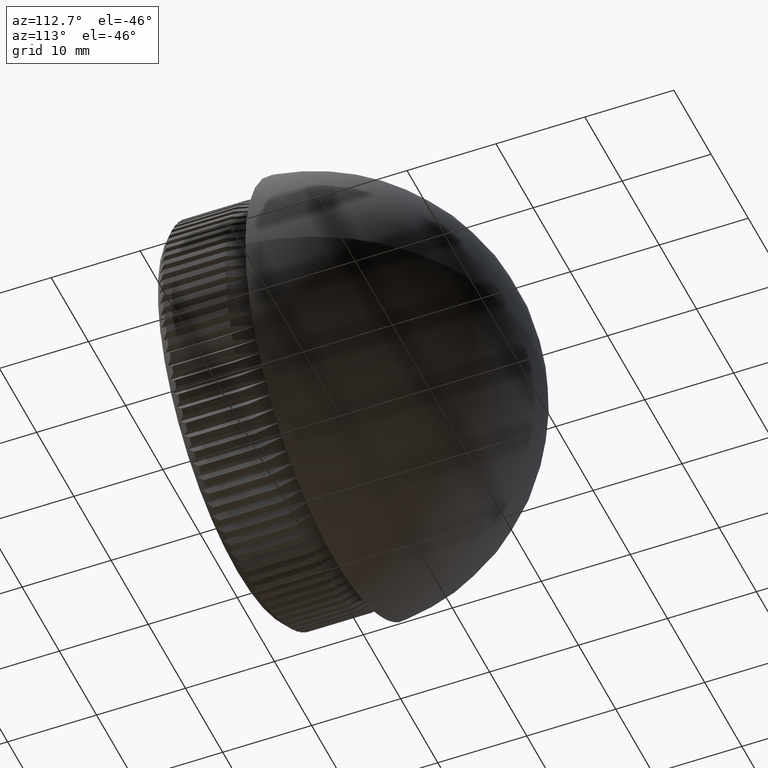
[diagram: clean part render]
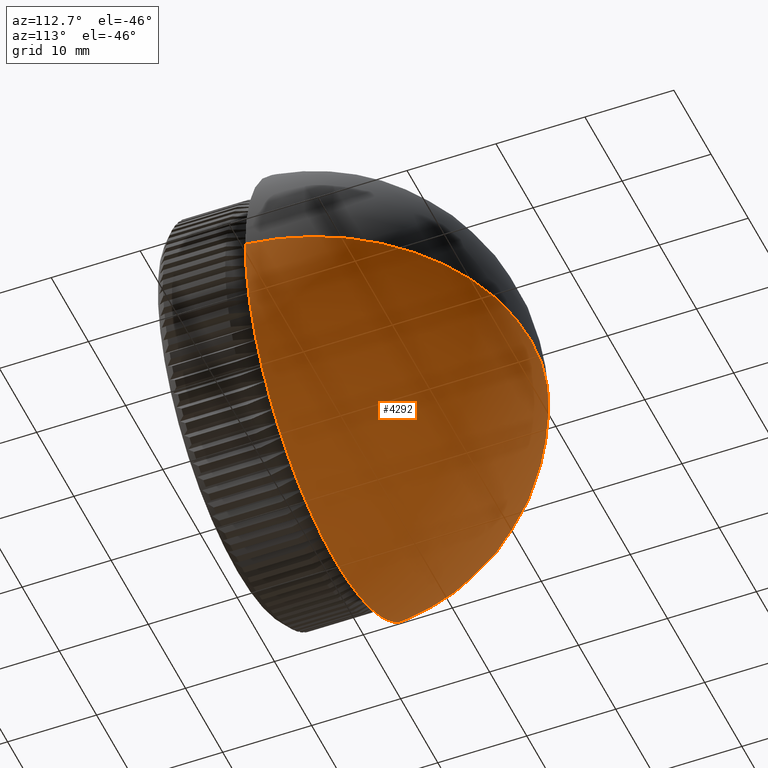
[diagram: same view with one face highlighted and labeled with its STEP entity id]
A machine part, auxiliary view. The second image highlights one B-rep face of the part: STEP entity #4292.
In plain terms, the highlighted spherical surface has radius 24.2551 mm.
Its self-contained STEP definition (entity closure, byte-faithful):
#2185 = CARTESIAN_POINT ( 'NONE',  ( 1.485193884776177600E-015, 33.00000000000000000, 0.0000000000000000000 ) ) ;
#2784 = CARTESIAN_POINT ( 'NONE',  ( -24.14999999999999900, 11.00000000000000400, 2.957522019940857900E-015 ) ) ;
#2894 = SPHERICAL_SURFACE ( 'NONE', #13294, 24.25505681818181700 ) ;
#3705 = DIRECTION ( 'NONE',  ( -1.000000000000000000, 0.0000000000000000000, 0.0000000000000000000 ) ) ;
#3887 = EDGE_CURVE ( 'NONE', #13904, #13243, #17136, .T. ) ;
#4292 = ADVANCED_FACE ( 'NONE', ( #5105 ), #2894, .T. ) ;
#4471 = AXIS2_PLACEMENT_3D ( 'NONE', #15670, #15828, #4982 ) ;
#4982 = DIRECTION ( 'NONE',  ( 1.000000000000000000, 0.0000000000000000000, -1.224646799147353500E-016 ) ) ;
#5056 = DIRECTION ( 'NONE',  ( -0.0000000000000000000, -1.000000000000000000, -0.0000000000000000000 ) ) ;
#5105 = FACE_OUTER_BOUND ( 'NONE', #18175, .T. ) ;
#5117 = ORIENTED_EDGE ( 'NONE', *, *, #10156, .F. ) ;
#5363 = DIRECTION ( 'NONE',  ( 0.0000000000000000000, 0.0000000000000000000, -1.000000000000000000 ) ) ;
#6533 = CARTESIAN_POINT ( 'NONE',  ( 0.0000000000000000000, 8.744943181818182900, 0.0000000000000000000 ) ) ;
#6911 = CIRCLE ( 'NONE', #16990, 24.14999999999999900 ) ;
#10156 = EDGE_CURVE ( 'NONE', #14509, #13243, #6911, .T. ) ;
#10751 = CIRCLE ( 'NONE', #4471, 24.25505681818181700 ) ;
#10797 = AXIS2_PLACEMENT_3D ( 'NONE', #11078, #12551, #3705 ) ;
#11078 = CARTESIAN_POINT ( 'NONE',  ( 0.0000000000000000000, 8.744943181818182900, 0.0000000000000000000 ) ) ;
#12087 = CARTESIAN_POINT ( 'NONE',  ( 24.14999999999999900, 11.00000000000000400, 0.0000000000000000000 ) ) ;
#12551 = DIRECTION ( 'NONE',  ( 0.0000000000000000000, 0.0000000000000000000, -1.000000000000000000 ) ) ;
#13243 = VERTEX_POINT ( 'NONE', #12087 ) ;
#13294 = AXIS2_PLACEMENT_3D ( 'NONE', #6533, #19190, #22797 ) ;
#13904 = VERTEX_POINT ( 'NONE', #2185 ) ;
#13967 = ORIENTED_EDGE ( 'NONE', *, *, #3887, .T. ) ;
#14509 = VERTEX_POINT ( 'NONE', #2784 ) ;
#15462 = ORIENTED_EDGE ( 'NONE', *, *, #16917, .F. ) ;
#15670 = CARTESIAN_POINT ( 'NONE',  ( 0.0000000000000000000, 8.744943181818182900, 0.0000000000000000000 ) ) ;
#15828 = DIRECTION ( 'NONE',  ( 1.224646799147353200E-016, -0.0000000000000000000, 1.000000000000000000 ) ) ;
#16917 = EDGE_CURVE ( 'NONE', #13904, #14509, #10751, .T. ) ;
#16990 = AXIS2_PLACEMENT_3D ( 'NONE', #17609, #5056, #5363 ) ;
#17136 = CIRCLE ( 'NONE', #10797, 24.25505681818181700 ) ;
#17609 = CARTESIAN_POINT ( 'NONE',  ( 0.0000000000000000000, 11.00000000000000400, 0.0000000000000000000 ) ) ;
#18175 = EDGE_LOOP ( 'NONE', ( #15462, #13967, #5117 ) ) ;
#19190 = DIRECTION ( 'NONE',  ( 0.0000000000000000000, 0.0000000000000000000, 1.000000000000000000 ) ) ;
#22797 = DIRECTION ( 'NONE',  ( 1.000000000000000000, 0.0000000000000000000, 0.0000000000000000000 ) ) ;